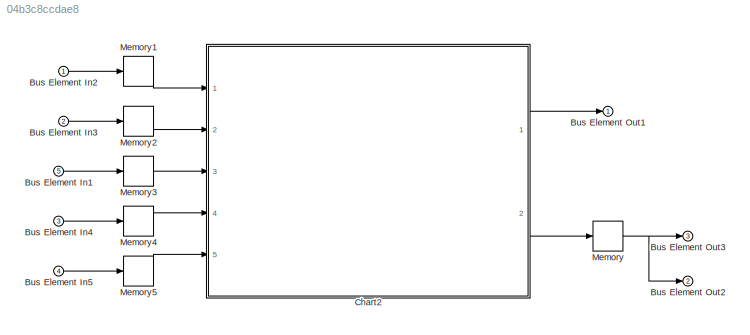
MODEL slx_04b3c8ccdae8
KIND model
CONFIG AbsTol = auto
CONFIG EnableMultiTasking = off
CONFIG FixedStep = auto
CONFIG MaxStep = auto
CONFIG MinStep = auto
CONFIG RelTol = 1e-3
CONFIG SampleTimeConstraint = Unconstrained
CONFIG Solver = VariableStepAuto
CONFIG SolverName = VariableStepAuto
CONFIG StartTime = 0.0
CONFIG StopTime = 10.0
BLOCK [Inport] Bus Element In1
  IconDisplay = Port number
  Port = 5
BLOCK [Inport] Bus Element In2
  IconDisplay = Port number
BLOCK [Inport] Bus Element In3
  IconDisplay = Port number
  Port = 2
BLOCK [Inport] Bus Element In4
  IconDisplay = Port number
  Port = 3
BLOCK [Inport] Bus Element In5
  IconDisplay = Port number
  Port = 4
BLOCK [Outport] Bus Element Out1
  IconDisplay = Port number
BLOCK [Outport] Bus Element Out2
  IconDisplay = Port number
  Port = 2
BLOCK [Outport] Bus Element Out3
  IconDisplay = Port number
  Port = 3
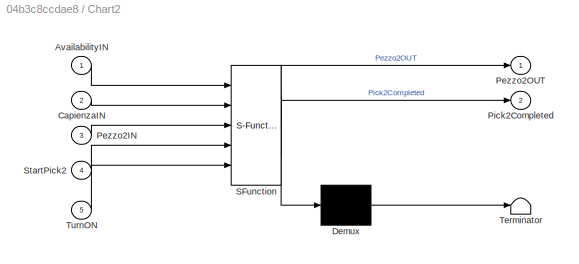
BLOCK [SubSystem] Chart2
  BlockKeywords = __PRM__SERIALIZED__DATA__:Stateflow Chart,Stateflow Diagram
  ErrorFcn = Stateflow.Translate.translate
  PermitHierarchicalResolution = ExplicitOnly
  Ports = [5, 2]
  RequestExecContextInheritance = off
  SFBlockType = Chart
  TreatAsAtomicUnit = on
BLOCK [Demux] Chart2/ Demux 
  Outputs = 1
  Ports = [1, 1]
BLOCK [S-Function] Chart2/ SFunction 
  EnableBusSupport = on
  FunctionName = sf_sfun
  PortCounts = [5 3]
  Ports = [5, 3]
  SFcnIsStateOwnerBlock = off
  SFunctionDeploymentMode = off
  Tag = Stateflow S-Function Preleva2 2
BLOCK [Terminator] Chart2/ Terminator 
BLOCK [Inport] Chart2/AvailabilityIN
  IconDisplay = Port number
BLOCK [Inport] Chart2/CapienzaIN
  IconDisplay = Port number
  Port = 2
BLOCK [Inport] Chart2/Pezzo2IN
  IconDisplay = Port number
  Port = 3
BLOCK [Outport] Chart2/Pezzo2OUT
  IconDisplay = Port number
BLOCK [Outport] Chart2/Pick2Completed
  IconDisplay = Port number
  Port = 2
BLOCK [Inport] Chart2/StartPick2
  IconDisplay = Port number
  Port = 4
BLOCK [Inport] Chart2/TurnON
  IconDisplay = Port number
  Port = 5
BLOCK [Memory] Memory
BLOCK [Memory] Memory1
BLOCK [Memory] Memory2
BLOCK [Memory] Memory3
BLOCK [Memory] Memory4
BLOCK [Memory] Memory5
LINE Bus Element In1:1 -> Memory3:1
LINE Bus Element In2:1 -> Memory1:1
LINE Bus Element In3:1 -> Memory2:1
LINE Bus Element In4:1 -> Memory4:1
LINE Bus Element In5:1 -> Memory5:1
LINE Chart2:1 -> Bus Element Out1:1
LINE Chart2:2 -> Memory:1
LINE Memory1:1 -> Chart2:1
LINE Memory2:1 -> Chart2:2
LINE Memory3:1 -> Chart2:3
LINE Memory4:1 -> Chart2:4
LINE Memory5:1 -> Chart2:5
NET Memory:1 -> Bus Element Out2:1, Bus Element Out3:1
note: NET lines group one-source signal fan-out (src -> all destinations, sorted); 1:1 wires keep LINE
CHART Chart2 states=6 transitions=11
  STATE_LABEL 'Idle\nPezzo2OUT=0;\nPick2Completed=0;'
  STATE_LABEL 'Waiting\nPezzo2OUT=0;\nPick2Completed=0;'
  STATE_LABEL 'Active'
  STATE_LABEL 'Working'
  STATE_LABEL 'Place\nduring:\nPezzo2OUT=1;\nPick2Completed = 1;\npause(0.1);'
  STATE_LABEL 'Pick\npause(0.1);'
